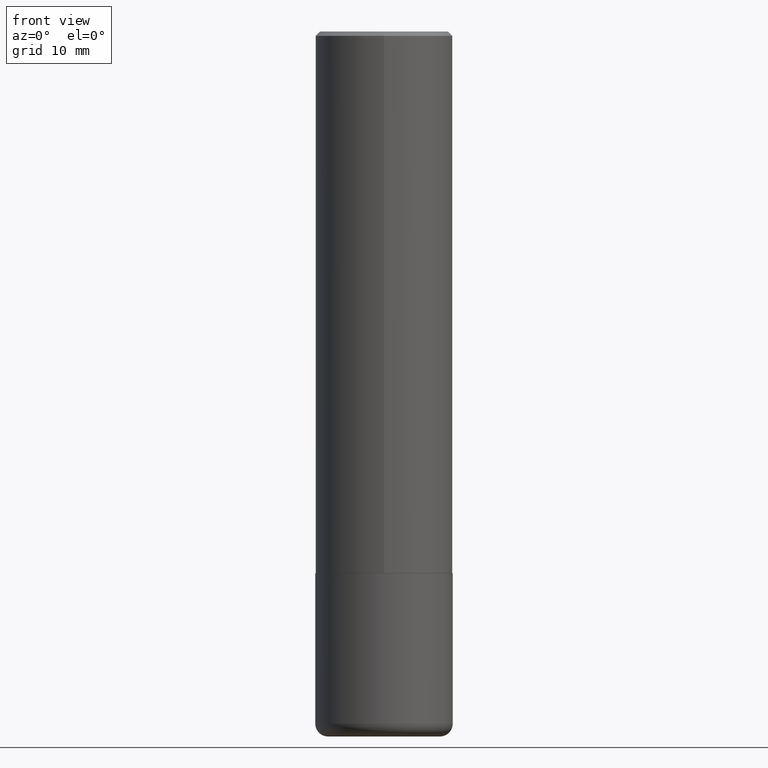
[diagram: clean part render]
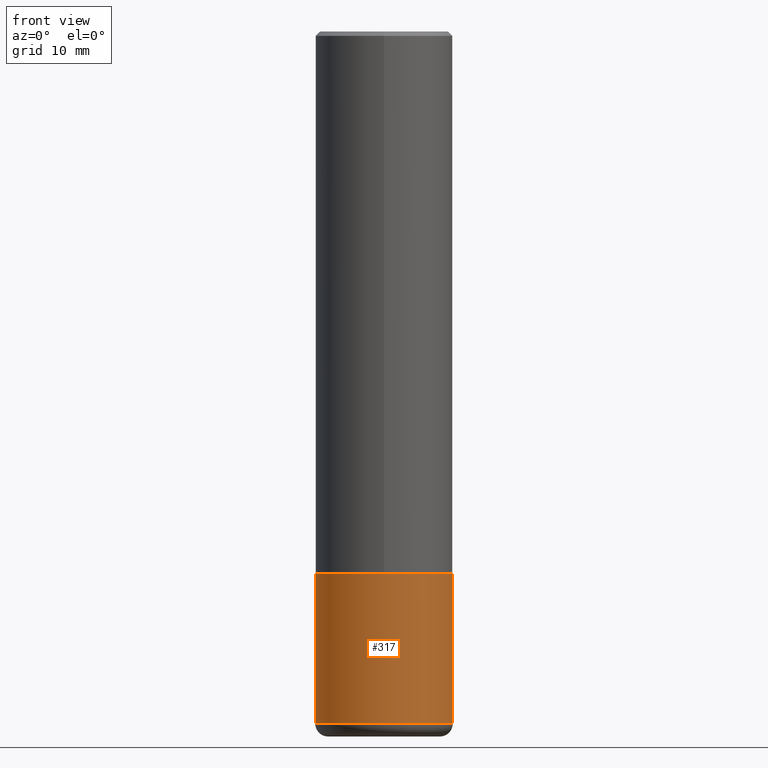
[diagram: same view with one face highlighted and labeled with its STEP entity id]
A machine part, front view. The second image highlights one B-rep face of the part: STEP entity #317.
In plain terms, the highlighted cylindrical surface (partial cylindrical patch) has radius 7.9997 mm, axis along (-0, 0, 1).
Its self-contained STEP definition (entity closure, byte-faithful):
#7 = FACE_OUTER_BOUND ( 'NONE', #160, .T. ) ;
#15 = CIRCLE ( 'NONE', #253, 0.3149499999999999522 ) ;
#30 = ORIENTED_EDGE ( 'NONE', *, *, #274, .F. ) ;
#47 = CARTESIAN_POINT ( 'NONE',  ( 0.3149499999999999522, -1.326448675439898354E-14, -3.169199999999999573 ) ) ;
#68 = EDGE_CURVE ( 'NONE', #350, #404, #70, .T. ) ;
#70 = LINE ( 'NONE', #355, #360 ) ;
#91 = AXIS2_PLACEMENT_3D ( 'NONE', #181, #146, #401 ) ;
#108 = CARTESIAN_POINT ( 'NONE',  ( 0.000000000000000000, 0.000000000000000000, 0.000000000000000000 ) ) ;
#114 = CARTESIAN_POINT ( 'NONE',  ( 0.3149500000000000077, -1.085920526006994521E-14, -2.480300000000000171 ) ) ;
#127 = CARTESIAN_POINT ( 'NONE',  ( 0.3149500000000000077, -2.199284095337289871E-15, 1.535751875536930130E-29 ) ) ;
#146 = DIRECTION ( 'NONE',  ( -2.445468806185136597E-29, 3.491481338843145583E-15, 1.000000000000000000 ) ) ;
#150 = DIRECTION ( 'NONE',  ( -2.445468806185136877E-29, 3.491481338843145188E-15, 1.000000000000000000 ) ) ;
#156 = CARTESIAN_POINT ( 'NONE',  ( -0.3149499999999999522, -8.827348312785260842E-15, -3.169199999999999573 ) ) ;
#160 = EDGE_LOOP ( 'NONE', ( #376, #314, #184, #30 ) ) ;
#179 = DIRECTION ( 'NONE',  ( -2.445468806185136597E-29, 3.491481338843145583E-15, 1.000000000000000000 ) ) ;
#181 = CARTESIAN_POINT ( 'NONE',  ( 6.065496279980994755E-29, -8.659921164732655335E-15, -2.480300000000000171 ) ) ;
#184 = ORIENTED_EDGE ( 'NONE', *, *, #375, .T. ) ;
#193 = VERTEX_POINT ( 'NONE', #114 ) ;
#200 = VECTOR ( 'NONE', #150, 39.37007874015748143 ) ;
#231 = DIRECTION ( 'NONE',  ( -2.445468806185136877E-29, 3.491481338843145188E-15, 1.000000000000000000 ) ) ;
#244 = VERTEX_POINT ( 'NONE', #47 ) ;
#253 = AXIS2_PLACEMENT_3D ( 'NONE', #275, #403, #381 ) ;
#274 = EDGE_CURVE ( 'NONE', #404, #193, #347, .T. ) ;
#275 = CARTESIAN_POINT ( 'NONE',  ( 7.750179740561933543E-29, -1.106520265906169525E-14, -3.169199999999999573 ) ) ;
#278 = AXIS2_PLACEMENT_3D ( 'NONE', #108, #179, #365 ) ;
#281 = LINE ( 'NONE', #127, #200 ) ;
#314 = ORIENTED_EDGE ( 'NONE', *, *, #386, .T. ) ;
#317 = ADVANCED_FACE ( 'NONE', ( #7 ), #394, .T. ) ;
#347 = CIRCLE ( 'NONE', #91, 0.3149500000000000077 ) ;
#350 = VERTEX_POINT ( 'NONE', #156 ) ;
#355 = CARTESIAN_POINT ( 'NONE',  ( -0.3149500000000000077, 2.237854346276435590E-15, -1.549218606675782676E-29 ) ) ;
#360 = VECTOR ( 'NONE', #231, 39.37007874015748143 ) ;
#365 = DIRECTION ( 'NONE',  ( 1.000000000000000000, -6.982962677686266711E-15, 4.876176775795936353E-29 ) ) ;
#375 = EDGE_CURVE ( 'NONE', #244, #193, #281, .T. ) ;
#376 = ORIENTED_EDGE ( 'NONE', *, *, #68, .F. ) ;
#381 = DIRECTION ( 'NONE',  ( 1.000000000000000000, -6.982962677686264344E-15, 0.000000000000000000 ) ) ;
#386 = EDGE_CURVE ( 'NONE', #350, #244, #15, .T. ) ;
#394 = CYLINDRICAL_SURFACE ( 'NONE', #278, 0.3149500000000000077 ) ;
#401 = DIRECTION ( 'NONE',  ( 1.000000000000000000, -6.982962677686269866E-15, 0.000000000000000000 ) ) ;
#403 = DIRECTION ( 'NONE',  ( -2.445468806185136597E-29, 3.491481338843145583E-15, 1.000000000000000000 ) ) ;
#404 = VERTEX_POINT ( 'NONE', #411 ) ;
#411 = CARTESIAN_POINT ( 'NONE',  ( -0.3149500000000000077, -7.624707565620739308E-15, -2.480300000000000171 ) ) ;